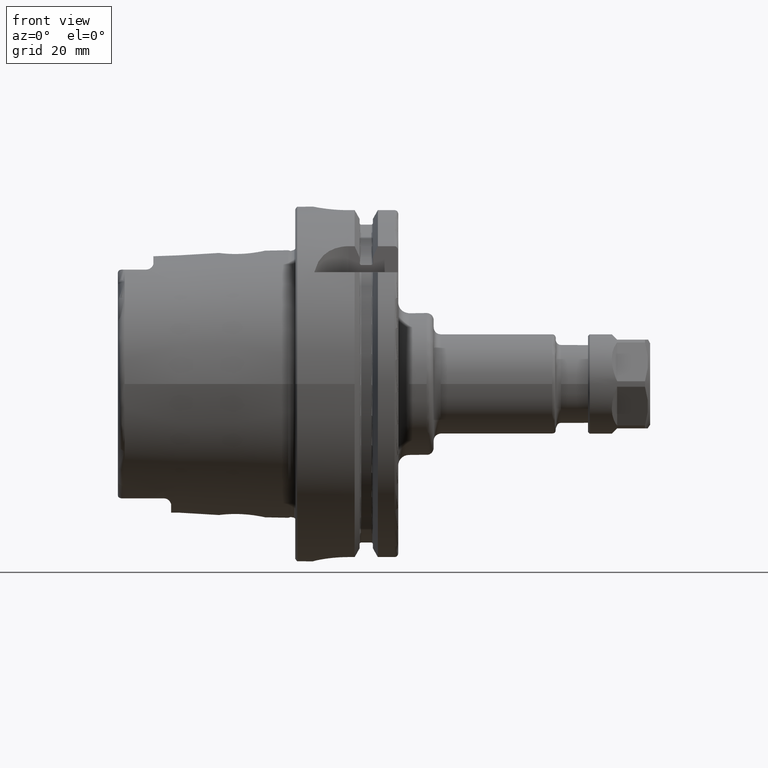
[diagram: clean part render]
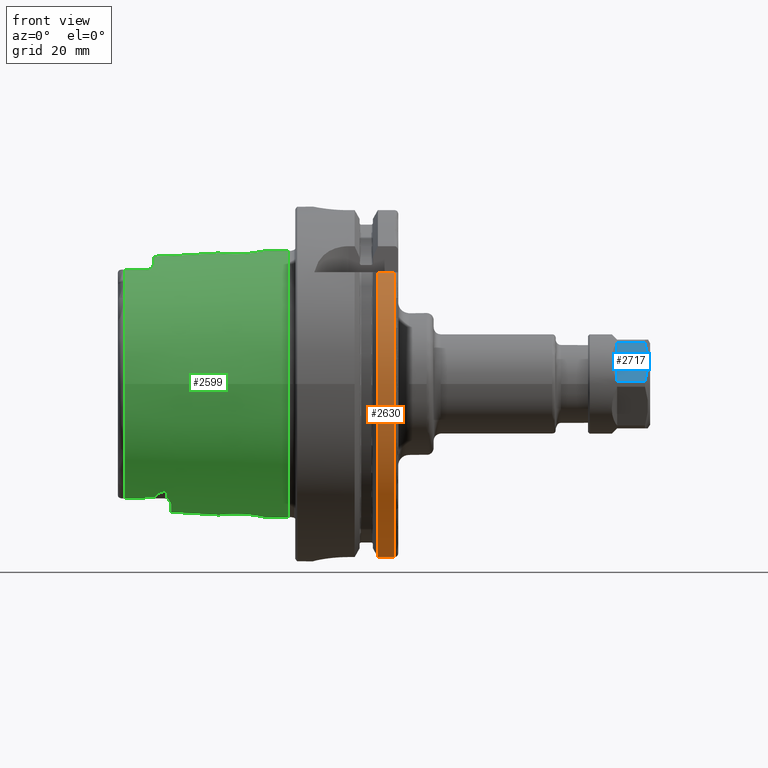
[diagram: same view with three faces highlighted in distinct colors, each labeled with its STEP entity id]
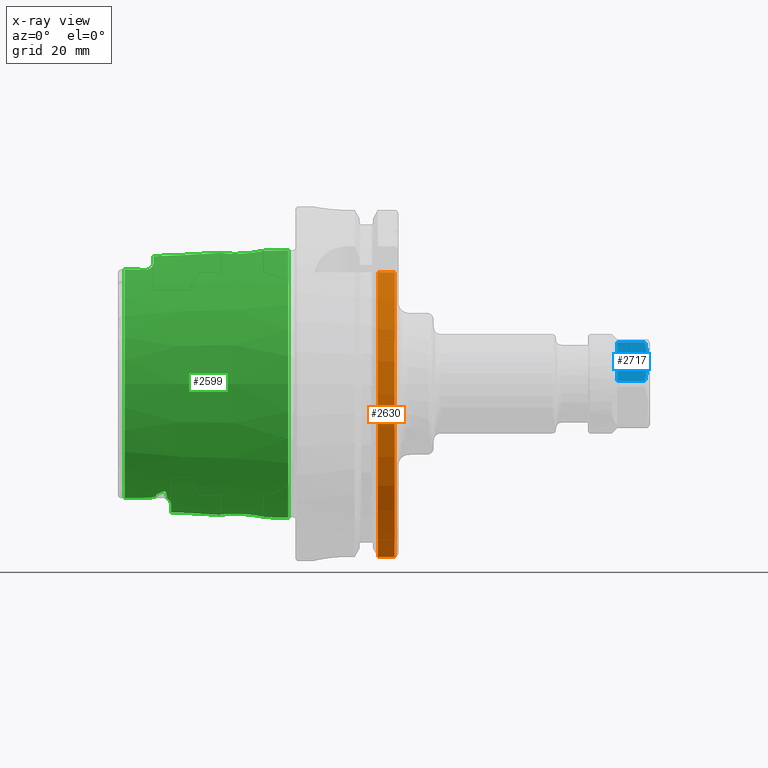
[diagram: x-ray of the same camera — body ghosted, the three highlighted faces saturated]
A machine part, front view with three faces highlighted in distinct colors.
The next image is the same camera in x-ray (body ghosted, the three faces saturated) — at least one of them is partly hidden behind the body in this view.
Their STEP definitions:

[orange] entity #2630 — the highlighted cylindrical surface (partial cylindrical patch) has radius 50 mm, axis along (1, 0, 0).
#345=FACE_OUTER_BOUND('',#507,.T.);
#507=EDGE_LOOP('',(#2087,#2088,#2089,#2090));
#665=LINE('',#4972,#807);
#681=LINE('',#5175,#823);
#807=VECTOR('',#3416,10.);
#823=VECTOR('',#3484,10.);
#971=CIRCLE('',#2942,50.);
#973=CIRCLE('',#2946,50.);
#1188=VERTEX_POINT('',#4967);
#1189=VERTEX_POINT('',#4971);
#1219=VERTEX_POINT('',#5163);
#1220=VERTEX_POINT('',#5174);
#1488=EDGE_CURVE('',#1189,#1188,#665,.T.);
#1533=EDGE_CURVE('',#1220,#1219,#681,.T.);
#1550=EDGE_CURVE('',#1189,#1219,#971,.T.);
#1553=EDGE_CURVE('',#1188,#1220,#973,.T.);
#2087=ORIENTED_EDGE('',*,*,#1488,.T.);
#2088=ORIENTED_EDGE('',*,*,#1553,.T.);
#2089=ORIENTED_EDGE('',*,*,#1533,.T.);
#2090=ORIENTED_EDGE('',*,*,#1550,.F.);
#2544=CYLINDRICAL_SURFACE('',#2945,50.);
#2630=ADVANCED_FACE('',(#345),#2544,.T.);
#2942=AXIS2_PLACEMENT_3D('',#5239,#3511,#3512);
#2945=AXIS2_PLACEMENT_3D('',#5244,#3518,#3519);
#2946=AXIS2_PLACEMENT_3D('',#5245,#3520,#3521);
#3416=DIRECTION('',(-1.,0.,0.));
#3484=DIRECTION('',(1.,0.,0.));
#3511=DIRECTION('center_axis',(1.,0.,0.));
#3512=DIRECTION('ref_axis',(0.,0.,-1.));
#3518=DIRECTION('center_axis',(1.,0.,0.));
#3519=DIRECTION('ref_axis',(0.,-0.94483222014474,-0.327554691275153));
#3520=DIRECTION('center_axis',(1.,0.,0.));
#3521=DIRECTION('ref_axis',(0.,0.,-1.));
#4967=CARTESIAN_POINT('',(23.2620290209214,-38.8297566307078,31.5));
#4971=CARTESIAN_POINT('',(28.,-38.8297566307078,31.5));
#4972=CARTESIAN_POINT('',(25.6310145104607,-38.8297566307078,31.5));
#5163=CARTESIAN_POINT('',(28.,-11.,-48.7749935930288));
#5174=CARTESIAN_POINT('',(23.2620290209214,-11.,-48.7749935930288));
#5175=CARTESIAN_POINT('',(25.6310145104607,-11.,-48.7749935930288));
#5239=CARTESIAN_POINT('Origin',(28.,0.,0.));
#5244=CARTESIAN_POINT('Origin',(25.6310145104607,0.,0.));
#5245=CARTESIAN_POINT('Origin',(23.2620290209214,0.,0.));

[blue] entity #2717 — the highlighted planar face has unit normal (0, 0.866, -0.5).
#80=(
BOUNDED_CURVE()
B_SPLINE_CURVE(2,(#5576,#5577,#5578),.UNSPECIFIED.,.F.,.F.)
B_SPLINE_CURVE_WITH_KNOTS((3,3),(1.76676018698417,3.88699167916846),
 .UNSPECIFIED.)
CURVE()
GEOMETRIC_REPRESENTATION_ITEM()
RATIONAL_B_SPLINE_CURVE((1.57887257803575,1.76833728739999,1.57887257803583))
REPRESENTATION_ITEM('')
);
#250=PLANE('',#3127);
#432=FACE_OUTER_BOUND('',#604,.T.);
#604=EDGE_LOOP('',(#2508,#2509,#2510,#2511));
#735=LINE('',#5624,#877);
#736=LINE('',#5627,#878);
#748=LINE('',#5660,#890);
#877=VECTOR('',#3900,7.856624327026);
#878=VECTOR('',#3903,7.856624327026);
#890=VECTOR('',#3941,12.6095202129196);
#1296=VERTEX_POINT('',#5573);
#1297=VERTEX_POINT('',#5575);
#1311=VERTEX_POINT('',#5623);
#1312=VERTEX_POINT('',#5625);
#1681=EDGE_CURVE('',#1297,#1296,#80,.T.);
#1700=EDGE_CURVE('',#1311,#1297,#735,.T.);
#1702=EDGE_CURVE('',#1312,#1296,#736,.T.);
#1719=EDGE_CURVE('',#1311,#1312,#748,.T.);
#2508=ORIENTED_EDGE('',*,*,#1719,.F.);
#2509=ORIENTED_EDGE('',*,*,#1700,.T.);
#2510=ORIENTED_EDGE('',*,*,#1681,.T.);
#2511=ORIENTED_EDGE('',*,*,#1702,.F.);
#2717=ADVANCED_FACE('',(#432),#250,.F.);
#3127=AXIS2_PLACEMENT_3D('',#5659,#3939,#3940);
#3900=DIRECTION('',(1.,0.,0.));
#3903=DIRECTION('',(1.,0.,0.));
#3939=DIRECTION('center_axis',(0.,0.866025403784429,-0.500000000000017));
#3940=DIRECTION('ref_axis',(0.,0.500000000000017,0.866025403784429));
#3941=DIRECTION('',(0.,0.500000000000017,0.866025403784429));
#5573=CARTESIAN_POINT('',(7.306624327026,-7.672937494076,11.71008241696));
#5575=CARTESIAN_POINT('',(7.306624327026,-13.97769760054,0.7899175830396));
#5576=CARTESIAN_POINT('Ctrl Pts',(7.30662432702171,-13.9776976005394,0.789917583040281));
#5577=CARTESIAN_POINT('Ctrl Pts',(8.94588669847094,-10.8253175473094,6.25000000000109));
#5578=CARTESIAN_POINT('Ctrl Pts',(7.30662432702252,-7.67293749407968,11.7100824169614));
#5623=CARTESIAN_POINT('',(-0.55,-13.97769760054,0.7899175830396));
#5624=CARTESIAN_POINT('',(-0.55,-13.97769760054,0.7899175830396));
#5625=CARTESIAN_POINT('',(-0.55,-7.672937494076,11.71008241696));
#5627=CARTESIAN_POINT('',(-0.55,-7.672937494076,11.71008241696));
#5659=CARTESIAN_POINT('Origin',(8.75,-15.82531754731,-2.410254037844));
#5660=CARTESIAN_POINT('',(-0.55,-13.97769760054,0.7899175830396));

[green] entity #2599 — the highlighted conical surface has half-angle 2.868 deg.
#65=(
BOUNDED_CURVE()
B_SPLINE_CURVE(2,(#4414,#4415,#4416),.UNSPECIFIED.,.F.,.F.)
B_SPLINE_CURVE_WITH_KNOTS((3,3),(0.584552731684763,1.01274112792473),
 .UNSPECIFIED.)
CURVE()
GEOMETRIC_REPRESENTATION_ITEM()
RATIONAL_B_SPLINE_CURVE((1.00299496728687,1.00299496728687,1.00138797244737))
REPRESENTATION_ITEM('')
);
#66=(
BOUNDED_CURVE()
B_SPLINE_CURVE(2,(#4483,#4484,#4485),.UNSPECIFIED.,.F.,.F.)
B_SPLINE_CURVE_WITH_KNOTS((3,3),(0.156364335444822,0.584552731684782),
 .UNSPECIFIED.)
CURVE()
GEOMETRIC_REPRESENTATION_ITEM()
RATIONAL_B_SPLINE_CURVE((1.00138797244738,1.00299496728688,1.00299496728688))
REPRESENTATION_ITEM('')
);
#89=B_SPLINE_CURVE_WITH_KNOTS('',3,(#4095,#4096,#4097,#4098,#4099,#4100,
#4101,#4102,#4103,#4104,#4105,#4106,#4107,#4108,#4109,#4110,#4111,#4112),
 .UNSPECIFIED.,.F.,.F.,(4,2,2,2,2,2,2,2,4),(1.82139636410114,1.83165892733975,
1.84192149057836,1.86244661705558,1.93660019990987,2.01075378276416,2.21475865094393,
2.41876351912369,2.7012608097453),.UNSPECIFIED.);
#90=B_SPLINE_CURVE_WITH_KNOTS('',3,(#4137,#4138,#4139,#4140,#4141,#4142,
#4143,#4144,#4145,#4146,#4147,#4148,#4149,#4150,#4151,#4152,#4153,#4154),
 .UNSPECIFIED.,.F.,.F.,(4,2,2,2,2,2,2,2,4),(0.941531918456969,1.22402920907858,
1.42803407725834,1.6320389454381,1.70619252829239,1.78034611114668,1.80087123762391,
1.81113380086252,1.82139636410113),.UNSPECIFIED.);
#93=B_SPLINE_CURVE_WITH_KNOTS('',3,(#4205,#4206,#4207,#4208,#4209,#4210,
#4211,#4212),.UNSPECIFIED.,.F.,.F.,(4,2,2,4),(2.11861414458057,2.2150675983984,
2.41910198133518,2.70152248778045),.UNSPECIFIED.);
#94=B_SPLINE_CURVE_WITH_KNOTS('',3,(#4229,#4230,#4231,#4232,#4233,#4234,
#4235,#4236),.UNSPECIFIED.,.F.,.F.,(4,2,2,4),(0.941785791175404,1.22420629762067,
1.42824068055745,1.52469413437528),.UNSPECIFIED.);
#98=B_SPLINE_CURVE_WITH_KNOTS('',3,(#4383,#4384,#4385,#4386,#4387,#4388,
#4389,#4390,#4391,#4392,#4393,#4394,#4395,#4396,#4397,#4398,#4399,#4400,
#4401,#4402,#4403,#4404,#4405,#4406),.UNSPECIFIED.,.T.,.F.,(4,1,1,1,1,1,
1,1,1,1,1,1,1,1,1,1,1,1,1,1,1,4),(-3.62526060553391,-3.36631341942435,-3.23683982636957,
-3.10736623331478,-2.91315584373261,-2.84841904720522,-2.58947186109565,
-2.41684040368928,-2.2442089462829,-2.07157748887652,-1.89894603147015,
-1.72631457406377,-1.55368311665739,-1.42420952360261,-1.29473593054783,
-1.16526233749304,-1.03578874443826,-0.776841558328696,-0.517894372219131,
-0.388420779164348,-0.258947186109565,0.),.UNSPECIFIED.);
#99=B_SPLINE_CURVE_WITH_KNOTS('',3,(#4418,#4419,#4420,#4421,#4422,#4423,
#4424,#4425,#4426,#4427,#4428,#4429,#4430,#4431,#4432,#4433,#4434,#4435),
 .UNSPECIFIED.,.F.,.F.,(4,2,2,2,2,2,2,2,4),(0.,0.135304265390776,0.202956398086165,
0.270608530781553,0.285985760505599,0.293674375367623,0.301362990229646,
0.309065814809453,0.312240543595572),.UNSPECIFIED.);
#100=B_SPLINE_CURVE_WITH_KNOTS('',3,(#4437,#4438,#4439,#4440,#4441,#4442,
#4443,#4444,#4445,#4446),.UNSPECIFIED.,.F.,.F.,(4,2,2,2,4),(0.355882377061024,
0.475337474766741,0.814409309765131,0.916871755852837,0.96838361555764),
 .UNSPECIFIED.);
#101=B_SPLINE_CURVE_WITH_KNOTS('',3,(#4450,#4451,#4452,#4453,#4454,#4455,
#4456,#4457,#4458,#4459,#4460,#4461,#4462,#4463),.UNSPECIFIED.,.F.,.F.,
(4,2,2,2,2,2,4),(0.968383615555967,0.974150710871355,1.03435732628962,1.16414359525928,
1.35274565404034,1.53834753535542,1.54014497255958),.UNSPECIFIED.);
#102=B_SPLINE_CURVE_WITH_KNOTS('',3,(#4465,#4466,#4467,#4468,#4469,#4470,
#4471,#4472,#4473,#4474,#4475,#4476,#4477,#4478,#4479,#4480,#4481,#4482),
 .UNSPECIFIED.,.F.,.F.,(4,2,2,2,2,2,2,2,4),(0.892798921569994,0.895973650356143,
0.90367647493595,0.911365089797973,0.919053704659997,0.934430934384044,
1.00208306707943,1.06973519977482,1.2050394651656),.UNSPECIFIED.);
#103=B_SPLINE_CURVE_WITH_KNOTS('',3,(#4488,#4489,#4490,#4491,#4492,#4493,
#4494,#4495,#4496,#4497,#4498,#4499,#4500,#4501,#4502,#4503),
 .UNSPECIFIED.,.F.,.F.,(4,2,2,2,2,2,2,4),(0.951925610593878,1.05814966490865,
1.29620724180457,1.38654842311884,1.45440735886397,1.51777192589664,1.5739379106757,
1.5771381713645),.UNSPECIFIED.);
#104=B_SPLINE_CURVE_WITH_KNOTS('',3,(#4506,#4507,#4508,#4509,#4510,#4511,
#4512,#4513,#4514,#4515,#4516,#4517,#4518,#4519),.UNSPECIFIED.,.F.,.F.,
(4,2,2,2,2,2,4),(0.58599893881899,0.631178615969429,0.682399631951053,0.741327952008913,
0.839467365471938,1.06407790070645,1.25314135766173),.UNSPECIFIED.);
#105=B_SPLINE_CURVE_WITH_KNOTS('',3,(#4522,#4523,#4524,#4525,#4526,#4527,
#4528,#4529,#4530,#4531,#4532,#4533,#4534,#4535,#4536,#4537,#4538,#4539,
#4540,#4541,#4542,#4543,#4544,#4545,#4546,#4547),.UNSPECIFIED.,.T.,.F.,
(4,1,1,1,1,1,1,1,1,1,1,1,1,1,1,1,1,1,1,1,1,1,1,4),(-3.62526060553391,-3.36631341942435,
-3.23683982636957,-3.13973463157848,-3.10736623331478,-2.84841904720522,
-2.58947186109565,-2.41684040368928,-2.2442089462829,-2.2010510819313,-2.07157748887652,
-1.89894603147015,-1.72631457406377,-1.55368311665739,-1.42420952360261,
-1.29473593054783,-1.16526233749304,-1.03578874443826,-0.776841558328696,
-0.712104761801304,-0.51789437221913,-0.388420779164348,-0.258947186109565,
0.),.UNSPECIFIED.);
#160=CONICAL_SURFACE('',#2877,36.7524901081155,0.0500583457465976);
#183=FACE_BOUND('',#474,.T.);
#184=FACE_BOUND('',#475,.T.);
#314=FACE_OUTER_BOUND('',#473,.T.);
#473=EDGE_LOOP('',(#1873,#1874,#1875,#1876,#1877,#1878,#1879,#1880,#1881,
#1882,#1883,#1884,#1885,#1886,#1887,#1888,#1889,#1890,#1891,#1892));
#474=EDGE_LOOP('',(#1893));
#475=EDGE_LOOP('',(#1894));
#648=LINE('',#4411,#790);
#790=VECTOR('',#3343,36.7524901081155);
#935=CIRCLE('',#2878,37.9073016032064);
#936=CIRCLE('',#2879,35.5976786130245);
#937=CIRCLE('',#2880,36.25399498998);
#938=CIRCLE('',#2881,35.5976786130245);
#939=CIRCLE('',#2882,36.003493987976);
#940=CIRCLE('',#2883,35.5976786130245);
#1104=VERTEX_POINT('',#4081);
#1105=VERTEX_POINT('',#4094);
#1115=VERTEX_POINT('',#4134);
#1116=VERTEX_POINT('',#4136);
#1126=VERTEX_POINT('',#4191);
#1127=VERTEX_POINT('',#4204);
#1133=VERTEX_POINT('',#4226);
#1134=VERTEX_POINT('',#4228);
#1137=VERTEX_POINT('',#4351);
#1140=VERTEX_POINT('',#4408);
#1141=VERTEX_POINT('',#4410);
#1142=VERTEX_POINT('',#4413);
#1143=VERTEX_POINT('',#4417);
#1144=VERTEX_POINT('',#4436);
#1145=VERTEX_POINT('',#4447);
#1146=VERTEX_POINT('',#4449);
#1147=VERTEX_POINT('',#4464);
#1148=VERTEX_POINT('',#4487);
#1149=VERTEX_POINT('',#4504);
#1150=VERTEX_POINT('',#4521);
#1380=EDGE_CURVE('',#1105,#1104,#89,.T.);
#1392=EDGE_CURVE('',#1116,#1115,#90,.T.);
#1406=EDGE_CURVE('',#1127,#1126,#93,.T.);
#1414=EDGE_CURVE('',#1134,#1133,#94,.T.);
#1422=EDGE_CURVE('',#1137,#1137,#98,.T.);
#1423=EDGE_CURVE('',#1140,#1140,#935,.T.);
#1424=EDGE_CURVE('',#1140,#1141,#648,.T.);
#1425=EDGE_CURVE('',#1141,#1116,#936,.T.);
#1426=EDGE_CURVE('',#1115,#1142,#65,.T.);
#1427=EDGE_CURVE('',#1143,#1142,#99,.T.);
#1428=EDGE_CURVE('',#1144,#1143,#100,.T.);
#1429=EDGE_CURVE('',#1144,#1145,#937,.T.);
#1430=EDGE_CURVE('',#1146,#1145,#101,.T.);
#1431=EDGE_CURVE('',#1147,#1146,#102,.T.);
#1432=EDGE_CURVE('',#1147,#1105,#66,.T.);
#1433=EDGE_CURVE('',#1104,#1134,#938,.T.);
#1434=EDGE_CURVE('',#1148,#1133,#103,.T.);
#1435=EDGE_CURVE('',#1148,#1149,#939,.T.);
#1436=EDGE_CURVE('',#1127,#1149,#104,.T.);
#1437=EDGE_CURVE('',#1126,#1141,#940,.T.);
#1438=EDGE_CURVE('',#1150,#1150,#105,.T.);
#1873=ORIENTED_EDGE('',*,*,#1423,.F.);
#1874=ORIENTED_EDGE('',*,*,#1424,.T.);
#1875=ORIENTED_EDGE('',*,*,#1425,.T.);
#1876=ORIENTED_EDGE('',*,*,#1392,.T.);
#1877=ORIENTED_EDGE('',*,*,#1426,.T.);
#1878=ORIENTED_EDGE('',*,*,#1427,.F.);
#1879=ORIENTED_EDGE('',*,*,#1428,.F.);
#1880=ORIENTED_EDGE('',*,*,#1429,.T.);
#1881=ORIENTED_EDGE('',*,*,#1430,.F.);
#1882=ORIENTED_EDGE('',*,*,#1431,.F.);
#1883=ORIENTED_EDGE('',*,*,#1432,.T.);
#1884=ORIENTED_EDGE('',*,*,#1380,.T.);
#1885=ORIENTED_EDGE('',*,*,#1433,.T.);
#1886=ORIENTED_EDGE('',*,*,#1414,.T.);
#1887=ORIENTED_EDGE('',*,*,#1434,.F.);
#1888=ORIENTED_EDGE('',*,*,#1435,.T.);
#1889=ORIENTED_EDGE('',*,*,#1436,.F.);
#1890=ORIENTED_EDGE('',*,*,#1406,.T.);
#1891=ORIENTED_EDGE('',*,*,#1437,.T.);
#1892=ORIENTED_EDGE('',*,*,#1424,.F.);
#1893=ORIENTED_EDGE('',*,*,#1438,.F.);
#1894=ORIENTED_EDGE('',*,*,#1422,.F.);
#2599=ADVANCED_FACE('',(#314,#183,#184),#160,.T.);
#2877=AXIS2_PLACEMENT_3D('',#4407,#3339,#3340);
#2878=AXIS2_PLACEMENT_3D('',#4409,#3341,#3342);
#2879=AXIS2_PLACEMENT_3D('',#4412,#3344,#3345);
#2880=AXIS2_PLACEMENT_3D('',#4448,#3346,#3347);
#2881=AXIS2_PLACEMENT_3D('',#4486,#3348,#3349);
#2882=AXIS2_PLACEMENT_3D('',#4505,#3350,#3351);
#2883=AXIS2_PLACEMENT_3D('',#4520,#3352,#3353);
#3339=DIRECTION('center_axis',(1.,0.,0.));
#3340=DIRECTION('ref_axis',(0.,1.,0.));
#3341=DIRECTION('center_axis',(1.,0.,0.));
#3342=DIRECTION('ref_axis',(0.,0.,-1.));
#3343=DIRECTION('',(-0.998747342623037,0.0500374420151823,6.12781932014143E-18));
#3344=DIRECTION('center_axis',(1.,0.,0.));
#3345=DIRECTION('ref_axis',(0.,0.,-1.));
#3346=DIRECTION('center_axis',(1.,0.,0.));
#3347=DIRECTION('ref_axis',(0.,1.,0.));
#3348=DIRECTION('center_axis',(1.,0.,0.));
#3349=DIRECTION('ref_axis',(0.,0.,-1.));
#3350=DIRECTION('center_axis',(1.,0.,0.));
#3351=DIRECTION('ref_axis',(0.,1.,0.));
#3352=DIRECTION('center_axis',(1.,0.,0.));
#3353=DIRECTION('ref_axis',(0.,0.,-1.));
#4081=CARTESIAN_POINT('',(-48.1000748840304,15.0787152148571,-32.2463497175327));
#4094=CARTESIAN_POINT('',(-39.3086860506441,17.2220784153651,-31.6567015600095));
#4095=CARTESIAN_POINT('Ctrl Pts',(-39.3086860506439,17.2220784153651,-31.6567015600096));
#4096=CARTESIAN_POINT('Ctrl Pts',(-39.3086860506439,17.1920288621925,-31.6730493074242));
#4097=CARTESIAN_POINT('Ctrl Pts',(-39.3149778656361,17.1622985367362,-31.6888083298259));
#4098=CARTESIAN_POINT('Ctrl Pts',(-39.3379356243704,17.1047575471073,-31.7185977246152));
#4099=CARTESIAN_POINT('Ctrl Pts',(-39.3545931085757,17.0769444761517,-31.7326299669));
#4100=CARTESIAN_POINT('Ctrl Pts',(-39.41492287308,16.9977687004959,-31.7717242618145));
#4101=CARTESIAN_POINT('Ctrl Pts',(-39.4690330405114,16.9505386197656,-31.7938497879436));
#4102=CARTESIAN_POINT('Ctrl Pts',(-39.7137538085318,16.7691556019457,-31.8763882092881));
#4103=CARTESIAN_POINT('Ctrl Pts',(-39.9557031082111,16.6668123685081,-31.9161154581445));
#4104=CARTESIAN_POINT('Ctrl Pts',(-40.4538120390228,16.4807891402054,-31.9844991546727));
#4105=CARTESIAN_POINT('Ctrl Pts',(-40.7121103138056,16.4018770942044,-32.0104206666339));
#4106=CARTESIAN_POINT('Ctrl Pts',(-41.6015350915672,16.1516844838416,-32.0879931345296));
#4107=CARTESIAN_POINT('Ctrl Pts',(-42.2774968259687,16.0065639510366,-32.1225120780024));
#4108=CARTESIAN_POINT('Ctrl Pts',(-43.6583569770469,15.7387900082285,-32.1775602969968));
#4109=CARTESIAN_POINT('Ctrl Pts',(-44.3638273319757,15.6187903492069,-32.19660809961));
#4110=CARTESIAN_POINT('Ctrl Pts',(-46.0708874643597,15.3507400024476,-32.2307282620297));
#4111=CARTESIAN_POINT('Ctrl Pts',(-47.0815953489825,15.2100460868363,-32.2412671998384));
#4112=CARTESIAN_POINT('Ctrl Pts',(-48.1000748840303,15.0787152148571,-32.2463497175327));
#4134=CARTESIAN_POINT('',(-39.3086860506441,-17.2220784153651,-31.6567015600095));
#4136=CARTESIAN_POINT('',(-48.1000748840304,-15.0787152148571,-32.2463497175327));
#4137=CARTESIAN_POINT('Ctrl Pts',(-48.1000748840304,-15.0787152148571,-32.2463497175327));
#4138=CARTESIAN_POINT('Ctrl Pts',(-47.0815953489825,-15.2100460868363,-32.2412671998384));
#4139=CARTESIAN_POINT('Ctrl Pts',(-46.0708874643597,-15.3507400024476,-32.2307282620297));
#4140=CARTESIAN_POINT('Ctrl Pts',(-44.3638273319757,-15.6187903492069,-32.19660809961));
#4141=CARTESIAN_POINT('Ctrl Pts',(-43.6583569770469,-15.7387900082285,-32.1775602969968));
#4142=CARTESIAN_POINT('Ctrl Pts',(-42.2774968259687,-16.0065639510366,-32.1225120780024));
#4143=CARTESIAN_POINT('Ctrl Pts',(-41.6015350915672,-16.1516844838416,-32.0879931345296));
#4144=CARTESIAN_POINT('Ctrl Pts',(-40.7121103138057,-16.4018770942044,-32.0104206666339));
#4145=CARTESIAN_POINT('Ctrl Pts',(-40.4538120390228,-16.4807891402054,-31.9844991546726));
#4146=CARTESIAN_POINT('Ctrl Pts',(-39.9557031082111,-16.6668123685081,-31.9161154581445));
#4147=CARTESIAN_POINT('Ctrl Pts',(-39.7137538085319,-16.7691556019457,-31.8763882092881));
#4148=CARTESIAN_POINT('Ctrl Pts',(-39.4690330405114,-16.9505386197656,-31.7938497879436));
#4149=CARTESIAN_POINT('Ctrl Pts',(-39.41492287308,-16.9977687004959,-31.7717242618145));
#4150=CARTESIAN_POINT('Ctrl Pts',(-39.3545931085758,-17.0769444761517,-31.7326299669));
#4151=CARTESIAN_POINT('Ctrl Pts',(-39.3379356243703,-17.1047575471073,-31.7185977246152));
#4152=CARTESIAN_POINT('Ctrl Pts',(-39.314977865636,-17.1622985367361,-31.688808329826));
#4153=CARTESIAN_POINT('Ctrl Pts',(-39.3086860506439,-17.1920288621925,-31.6730493074242));
#4154=CARTESIAN_POINT('Ctrl Pts',(-39.3086860506439,-17.2220784153651,-31.6567015600096));
#4191=CARTESIAN_POINT('',(-48.1000748840304,-15.0787152148571,32.2463497175327));
#4204=CARTESIAN_POINT('',(-42.0000000002536,-16.0736316900317,32.1042809403702));
#4205=CARTESIAN_POINT('Ctrl Pts',(-42.0000000002663,-16.0736316900856,32.1042809403568));
#4206=CARTESIAN_POINT('Ctrl Pts',(-42.3189705746531,-16.0023328339441,32.122106579912));
#4207=CARTESIAN_POINT('Ctrl Pts',(-42.6420078541405,-15.9358744877955,32.1370456038288));
#4208=CARTESIAN_POINT('Ctrl Pts',(-43.6589764923173,-15.7386786248219,32.177580265585));
#4209=CARTESIAN_POINT('Ctrl Pts',(-44.364550975751,-15.6186692080222,32.1966265955614));
#4210=CARTESIAN_POINT('Ctrl Pts',(-46.0714496280263,-15.3506621075505,32.2307339275334));
#4211=CARTESIAN_POINT('Ctrl Pts',(-47.0818768820559,-15.210009783717,32.2412686047727));
#4212=CARTESIAN_POINT('Ctrl Pts',(-48.1000748840304,-15.0787152148571,32.2463497175327));
#4226=CARTESIAN_POINT('',(-42.0000000002536,16.0736316900317,32.1042809403702));
#4228=CARTESIAN_POINT('',(-48.1000748840304,15.0787152148571,32.2463497175327));
#4229=CARTESIAN_POINT('Ctrl Pts',(-48.1000748840304,15.0787152148571,32.2463497175327));
#4230=CARTESIAN_POINT('Ctrl Pts',(-47.0818768820559,15.210009783717,32.2412686047727));
#4231=CARTESIAN_POINT('Ctrl Pts',(-46.0714496280263,15.3506621075505,32.2307339275334));
#4232=CARTESIAN_POINT('Ctrl Pts',(-44.364550975751,15.6186692080222,32.1966265955614));
#4233=CARTESIAN_POINT('Ctrl Pts',(-43.6589764923172,15.7386786248219,32.177580265585));
#4234=CARTESIAN_POINT('Ctrl Pts',(-42.6420078541405,15.9358744877955,32.1370456038288));
#4235=CARTESIAN_POINT('Ctrl Pts',(-42.3189705746531,16.0023328339441,32.122106579912));
#4236=CARTESIAN_POINT('Ctrl Pts',(-42.0000000002663,16.0736316900856,32.1042809403568));
#4351=CARTESIAN_POINT('',(-15.0482435047104,6.49272743621066,-36.6834276129017));
#4383=CARTESIAN_POINT('Ctrl Pts',(-15.0482435047104,6.49272743621066,-36.6834276129017));
#4384=CARTESIAN_POINT('Ctrl Pts',(-14.1135545674523,6.50026995600844,-36.7296485677624));
#4385=CARTESIAN_POINT('Ctrl Pts',(-12.6125862949105,6.18830817118321,-36.8646717861154));
#4386=CARTESIAN_POINT('Ctrl Pts',(-10.9355263213122,5.13385394303874,-37.1097128714846));
#4387=CARTESIAN_POINT('Ctrl Pts',(-9.77420691042437,3.99872482551772,-37.3124990416381));
#4388=CARTESIAN_POINT('Ctrl Pts',(-9.01389114298067,2.6908920183028,-37.4692616165149));
#4389=CARTESIAN_POINT('Ctrl Pts',(-8.45620136187699,0.783918842134784,-37.5909415665212));
#4390=CARTESIAN_POINT('Ctrl Pts',(-8.42050281053454,-1.03174264349175,-37.5987683444945));
#4391=CARTESIAN_POINT('Ctrl Pts',(-9.26297266549275,-3.26583075674904,-37.4147206754643));
#4392=CARTESIAN_POINT('Ctrl Pts',(-10.458492519938,-4.76885929810559,-37.1861403632723));
#4393=CARTESIAN_POINT('Ctrl Pts',(-12.0228887870965,-5.89032438834427,-36.9420532655873));
#4394=CARTESIAN_POINT('Ctrl Pts',(-13.9680532212746,-6.50710199210242,-36.7359370633354));
#4395=CARTESIAN_POINT('Ctrl Pts',(-15.8440764393336,-6.52958618717481,-36.6362816769022));
#4396=CARTESIAN_POINT('Ctrl Pts',(-17.6300730630046,-6.03011079587191,-36.6335589552162));
#4397=CARTESIAN_POINT('Ctrl Pts',(-19.0454046322519,-5.14759442471502,-36.6975665887127));
#4398=CARTESIAN_POINT('Ctrl Pts',(-20.0509032742539,-4.16499804110167,-36.7727593560743));
#4399=CARTESIAN_POINT('Ctrl Pts',(-20.8701749498926,-2.92631384107143,-36.8543936474532));
#4400=CARTESIAN_POINT('Ctrl Pts',(-21.5409373453018,-1.02232892624704,-36.9349482957206));
#4401=CARTESIAN_POINT('Ctrl Pts',(-21.5837880668158,1.35571299008144,-36.9401169281877));
#4402=CARTESIAN_POINT('Ctrl Pts',(-20.4818838939864,3.73437449889082,-36.8075944881395));
#4403=CARTESIAN_POINT('Ctrl Pts',(-19.1568247034836,5.05418616406115,-36.7047525113947));
#4404=CARTESIAN_POINT('Ctrl Pts',(-17.4931824437517,6.14967739850973,-36.6242770442053));
#4405=CARTESIAN_POINT('Ctrl Pts',(-15.9829324419684,6.48518491641288,-36.637206658041));
#4406=CARTESIAN_POINT('Ctrl Pts',(-15.0482435047104,6.49272743621066,-36.6834276129017));
#4407=CARTESIAN_POINT('Origin',(-25.0500374420152,0.,0.));
#4408=CARTESIAN_POINT('',(-2.,-37.9073016032064,-4.64230555726801E-15));
#4409=CARTESIAN_POINT('Origin',(-2.,0.,0.));
#4410=CARTESIAN_POINT('',(-48.1000748840304,-35.5976786130245,-4.35945831705167E-15));
#4411=CARTESIAN_POINT('',(-25.0500374420152,-36.7524901081155,-4.50088193715984E-15));
#4412=CARTESIAN_POINT('Origin',(-48.1000748840304,0.,0.));
#4413=CARTESIAN_POINT('',(-36.9999999999998,-19.7604190654811,-30.275777472314));
#4414=CARTESIAN_POINT('Ctrl Pts',(-39.3086860506441,-17.2220784153651,-31.6567015600095));
#4415=CARTESIAN_POINT('Ctrl Pts',(-39.3086860506441,-18.4892152804039,-30.9673457719047));
#4416=CARTESIAN_POINT('Ctrl Pts',(-37.0000000000089,-19.760419065476,-30.2757774723168));
#4417=CARTESIAN_POINT('',(-36.2297931655992,-17.2957936700592,-31.7922009905656));
#4418=CARTESIAN_POINT('Ctrl Pts',(-36.2297931655991,-17.2957936700592,-31.7922009905656));
#4419=CARTESIAN_POINT('Ctrl Pts',(-36.2297931655991,-17.6919746847632,-31.5766680965597));
#4420=CARTESIAN_POINT('Ctrl Pts',(-36.2521990165892,-18.1190045646745,-31.3326752508756));
#4421=CARTESIAN_POINT('Ctrl Pts',(-36.3408092415002,-18.7314387685111,-30.9624943289716));
#4422=CARTESIAN_POINT('Ctrl Pts',(-36.3790895444364,-18.9299841471613,-30.8391450528654));
#4423=CARTESIAN_POINT('Ctrl Pts',(-36.4852329136377,-19.306843178886,-30.5983353090591));
#4424=CARTESIAN_POINT('Ctrl Pts',(-36.5439103950281,-19.4871821233798,-30.4800880558704));
#4425=CARTESIAN_POINT('Ctrl Pts',(-36.6912326687357,-19.6798076445983,-30.3467082687203));
#4426=CARTESIAN_POINT('Ctrl Pts',(-36.7249701183787,-19.7165113518141,-30.3208469816645));
#4427=CARTESIAN_POINT('Ctrl Pts',(-36.7841864173308,-19.7579943063986,-30.290274608581));
#4428=CARTESIAN_POINT('Ctrl Pts',(-36.8053838947294,-19.7694984454156,-30.2814962901986));
#4429=CARTESIAN_POINT('Ctrl Pts',(-36.8506143317697,-19.7854180725537,-30.2683898183443));
#4430=CARTESIAN_POINT('Ctrl Pts',(-36.8746547533364,-19.7898201350064,-30.264071114845));
#4431=CARTESIAN_POINT('Ctrl Pts',(-36.925895284142,-19.7884151696532,-30.2619225368856));
#4432=CARTESIAN_POINT('Ctrl Pts',(-36.9499861453108,-19.7826799175172,-30.2642318432453));
#4433=CARTESIAN_POINT('Ctrl Pts',(-36.9820207117301,-19.7696848900689,-30.2708039920388));
#4434=CARTESIAN_POINT('Ctrl Pts',(-36.9911306097576,-19.7653027102035,-30.273120641115));
#4435=CARTESIAN_POINT('Ctrl Pts',(-36.9999999999997,-19.760419065481,-30.275777472314));
#4436=CARTESIAN_POINT('',(-35.,-12.7918651267415,-33.9222690767105));
#4437=CARTESIAN_POINT('Ctrl Pts',(-35.,-12.7918651267426,-33.9222690767101));
#4438=CARTESIAN_POINT('Ctrl Pts',(-35.0000000000001,-13.2716695445343,-33.7413379784475));
#4439=CARTESIAN_POINT('Ctrl Pts',(-35.0765460606978,-13.7105867284853,-33.5594062083601));
#4440=CARTESIAN_POINT('Ctrl Pts',(-35.3935172162449,-15.0275145848391,-32.9882321567447));
#4441=CARTESIAN_POINT('Ctrl Pts',(-35.8272793338039,-15.8448282797016,-32.5701705725068));
#4442=CARTESIAN_POINT('Ctrl Pts',(-36.1303536788273,-16.6786905371956,-32.126600714556));
#4443=CARTESIAN_POINT('Ctrl Pts',(-36.1820664850684,-16.8557754437463,-32.030984619072));
#4444=CARTESIAN_POINT('Ctrl Pts',(-36.2225122577352,-17.1184652869411,-31.8886039957027));
#4445=CARTESIAN_POINT('Ctrl Pts',(-36.2297931655992,-17.2061020907562,-31.8409955691488));
#4446=CARTESIAN_POINT('Ctrl Pts',(-36.2297931655992,-17.2957936700592,-31.7922009905656));
#4447=CARTESIAN_POINT('',(-35.,12.7918651267415,-33.9222690767105));
#4448=CARTESIAN_POINT('Origin',(-35.,0.,0.));
#4449=CARTESIAN_POINT('',(-36.2297931655992,17.2957936700592,-31.7922009905656));
#4450=CARTESIAN_POINT('Ctrl Pts',(-36.2297931655992,17.2957936700592,-31.7922009905656));
#4451=CARTESIAN_POINT('Ctrl Pts',(-36.2297931655992,17.2857521011896,-31.7976638681859));
#4452=CARTESIAN_POINT('Ctrl Pts',(-36.2297018732724,17.2756840159163,-31.8031402140989));
#4453=CARTESIAN_POINT('Ctrl Pts',(-36.2275970792751,17.1601682556352,-31.8659616470356));
#4454=CARTESIAN_POINT('Ctrl Pts',(-36.2156218316917,17.0562072347613,-31.922407942335));
#4455=CARTESIAN_POINT('Ctrl Pts',(-36.1505093185127,16.7229293390599,-32.1027521967692));
#4456=CARTESIAN_POINT('Ctrl Pts',(-36.065134056668,16.4848506381079,-32.2308215310631));
#4457=CARTESIAN_POINT('Ctrl Pts',(-35.7984585549742,15.8312737268516,-32.5732245714574));
#4458=CARTESIAN_POINT('Ctrl Pts',(-35.5744019673667,15.3507133777923,-32.8174718312589));
#4459=CARTESIAN_POINT('Ctrl Pts',(-35.1938633470317,14.2651773499191,-33.3242510091415));
#4460=CARTESIAN_POINT('Ctrl Pts',(-35.0037140190077,13.5715015976815,-33.6275053772421));
#4461=CARTESIAN_POINT('Ctrl Pts',(-35.0000176891147,12.8065033311274,-33.9167454576574));
#4462=CARTESIAN_POINT('Ctrl Pts',(-35.,12.7991780985434,-33.9195114030197));
#4463=CARTESIAN_POINT('Ctrl Pts',(-35.,12.7918651267414,-33.9222690767105));
#4464=CARTESIAN_POINT('',(-37.,19.7604190654809,-30.2757774723141));
#4465=CARTESIAN_POINT('Ctrl Pts',(-37.,19.760419065481,-30.2757774723141));
#4466=CARTESIAN_POINT('Ctrl Pts',(-36.9911306097578,19.7653027102035,-30.273120641115));
#4467=CARTESIAN_POINT('Ctrl Pts',(-36.9820207117302,19.769684890069,-30.2708039920388));
#4468=CARTESIAN_POINT('Ctrl Pts',(-36.9499861453108,19.7826799175173,-30.2642318432453));
#4469=CARTESIAN_POINT('Ctrl Pts',(-36.925895284142,19.7884151696532,-30.2619225368856));
#4470=CARTESIAN_POINT('Ctrl Pts',(-36.8746547533364,19.7898201350064,-30.264071114845));
#4471=CARTESIAN_POINT('Ctrl Pts',(-36.8506143317697,19.7854180725537,-30.2683898183443));
#4472=CARTESIAN_POINT('Ctrl Pts',(-36.8053838947294,19.7694984454156,-30.2814962901986));
#4473=CARTESIAN_POINT('Ctrl Pts',(-36.7841864173308,19.7579943063986,-30.290274608581));
#4474=CARTESIAN_POINT('Ctrl Pts',(-36.7249701183787,19.7165113518141,-30.3208469816645));
#4475=CARTESIAN_POINT('Ctrl Pts',(-36.6912326687357,19.6798076445984,-30.3467082687203));
#4476=CARTESIAN_POINT('Ctrl Pts',(-36.5439103950281,19.4871821233798,-30.4800880558704));
#4477=CARTESIAN_POINT('Ctrl Pts',(-36.4852329136378,19.306843178886,-30.5983353090591));
#4478=CARTESIAN_POINT('Ctrl Pts',(-36.3790895444365,18.9299841471613,-30.8391450528654));
#4479=CARTESIAN_POINT('Ctrl Pts',(-36.3408092415002,18.7314387685111,-30.9624943289715));
#4480=CARTESIAN_POINT('Ctrl Pts',(-36.2521990165892,18.1190045646745,-31.3326752508756));
#4481=CARTESIAN_POINT('Ctrl Pts',(-36.2297931655991,17.6919746847632,-31.5766680965597));
#4482=CARTESIAN_POINT('Ctrl Pts',(-36.2297931655991,17.2957936700592,-31.7922009905656));
#4483=CARTESIAN_POINT('Ctrl Pts',(-37.0000000000092,19.7604190654759,-30.2757774723168));
#4484=CARTESIAN_POINT('Ctrl Pts',(-39.3086860506441,18.4892152804039,-30.9673457719048));
#4485=CARTESIAN_POINT('Ctrl Pts',(-39.3086860506441,17.2220784153651,-31.6567015600095));
#4486=CARTESIAN_POINT('Origin',(-48.1000748840304,0.,0.));
#4487=CARTESIAN_POINT('',(-40.,12.4227760464511,33.7923987701664));
#4488=CARTESIAN_POINT('Ctrl Pts',(-40.,12.4227760464511,33.7923987701664));
#4489=CARTESIAN_POINT('Ctrl Pts',(-40.,12.7419527823378,33.6750628824087));
#4490=CARTESIAN_POINT('Ctrl Pts',(-40.0375731646412,13.0776475996579,33.5444889562855));
#4491=CARTESIAN_POINT('Ctrl Pts',(-40.2952030220137,14.204338882917,33.0777059010272));
#4492=CARTESIAN_POINT('Ctrl Pts',(-40.646555500088,14.8752966004784,32.7549341580208));
#4493=CARTESIAN_POINT('Ctrl Pts',(-41.0603895118526,15.4779630836856,32.44836211168));
#4494=CARTESIAN_POINT('Ctrl Pts',(-41.1980205087673,15.6556849566356,32.3552047227428));
#4495=CARTESIAN_POINT('Ctrl Pts',(-41.4545269599315,15.9060673278644,32.2183420240425));
#4496=CARTESIAN_POINT('Ctrl Pts',(-41.5436022580114,15.9688653327575,32.1820824055277));
#4497=CARTESIAN_POINT('Ctrl Pts',(-41.6853529076114,16.0463920787515,32.1355548450209));
#4498=CARTESIAN_POINT('Ctrl Pts',(-41.7512744555391,16.0697812119561,32.1201454390566));
#4499=CARTESIAN_POINT('Ctrl Pts',(-41.8741794719293,16.0889724726195,32.1036488638476));
#4500=CARTESIAN_POINT('Ctrl Pts',(-41.9317167825714,16.0876211043841,32.1011018387604));
#4501=CARTESIAN_POINT('Ctrl Pts',(-41.9933777503431,16.0750788518127,32.1039274012118));
#4502=CARTESIAN_POINT('Ctrl Pts',(-41.9966932024657,16.0743708520026,32.1040961402821));
#4503=CARTESIAN_POINT('Ctrl Pts',(-42.0000000002664,16.0736316900856,32.1042809403568));
#4504=CARTESIAN_POINT('',(-40.,-12.4227760464511,33.7923987701664));
#4505=CARTESIAN_POINT('Origin',(-40.,0.,0.));
#4506=CARTESIAN_POINT('Ctrl Pts',(-42.0000000002664,-16.0736316900856,32.1042809403568));
#4507=CARTESIAN_POINT('Ctrl Pts',(-41.9532981877176,-16.0840708530993,32.1016710140877));
#4508=CARTESIAN_POINT('Ctrl Pts',(-41.9050462288341,-16.0882872456028,32.1022609254704));
#4509=CARTESIAN_POINT('Ctrl Pts',(-41.7973675228035,-16.0800004321419,32.1124461122313));
#4510=CARTESIAN_POINT('Ctrl Pts',(-41.7413360757048,-16.0653619433608,32.1229212478587));
#4511=CARTESIAN_POINT('Ctrl Pts',(-41.6239822044533,-16.0165128109429,32.1538775766807));
#4512=CARTESIAN_POINT('Ctrl Pts',(-41.5522675623989,-15.9755629601737,32.1783316856742));
#4513=CARTESIAN_POINT('Ctrl Pts',(-41.3277927134023,-15.7966592313301,32.2792175155224));
#4514=CARTESIAN_POINT('Ctrl Pts',(-41.1901764677993,-15.6399550711414,32.3632616530429));
#4515=CARTESIAN_POINT('Ctrl Pts',(-40.8198003078492,-15.1566985557665,32.6146257404162));
#4516=CARTESIAN_POINT('Ctrl Pts',(-40.5143326017071,-14.6456107207803,32.868966839454));
#4517=CARTESIAN_POINT('Ctrl Pts',(-40.1039820766269,-13.4955400218785,33.3777943404952));
#4518=CARTESIAN_POINT('Ctrl Pts',(-40.,-12.9546784960247,33.5968605648276));
#4519=CARTESIAN_POINT('Ctrl Pts',(-40.,-12.422776046451,33.7923987701664));
#4520=CARTESIAN_POINT('Origin',(-48.1000748840304,0.,0.));
#4521=CARTESIAN_POINT('',(-15.0482435047104,6.49272743621066,36.6834276129017));
#4522=CARTESIAN_POINT('Ctrl Pts',(-15.0482435047104,6.49272743621066,36.6834276129017));
#4523=CARTESIAN_POINT('Ctrl Pts',(-15.9829324419684,6.48518491641288,36.637206658041));
#4524=CARTESIAN_POINT('Ctrl Pts',(-17.4866023410943,6.1492077495217,36.6235790675961));
#4525=CARTESIAN_POINT('Ctrl Pts',(-19.0577948349359,5.12534251951808,36.7000400389206));
#4526=CARTESIAN_POINT('Ctrl Pts',(-19.7285341214944,4.47535633862254,36.7489785200356));
#4527=CARTESIAN_POINT('Ctrl Pts',(-20.6550188198957,3.37673173572321,36.8280268143641));
#4528=CARTESIAN_POINT('Ctrl Pts',(-21.5767265446075,1.36398348816804,36.93957893606));
#4529=CARTESIAN_POINT('Ctrl Pts',(-21.546724865986,-1.1898750248608,36.9354628300056));
#4530=CARTESIAN_POINT('Ctrl Pts',(-20.6614810285301,-3.39819593521009,36.8298067136365));
#4531=CARTESIAN_POINT('Ctrl Pts',(-19.7299275837876,-4.50878451478095,36.7460018871591));
#4532=CARTESIAN_POINT('Ctrl Pts',(-18.7617072817101,-5.32584036574977,36.6848153804274));
#4533=CARTESIAN_POINT('Ctrl Pts',(-17.6257926470054,-6.02949389457767,36.6338999971975));
#4534=CARTESIAN_POINT('Ctrl Pts',(-15.8516352881468,-6.52976180497178,36.6358727150011));
#4535=CARTESIAN_POINT('Ctrl Pts',(-13.9603354002875,-6.5058868548532,36.736639679508));
#4536=CARTESIAN_POINT('Ctrl Pts',(-12.1928929992637,-5.95072068791055,36.9230706723905));
#4537=CARTESIAN_POINT('Ctrl Pts',(-10.8263000201084,-5.04719821437838,37.1274642889699));
#4538=CARTESIAN_POINT('Ctrl Pts',(-9.85299902234014,-4.05128459645323,37.299862620781));
#4539=CARTESIAN_POINT('Ctrl Pts',(-9.06190637750763,-2.78872073232155,37.4584370687624));
#4540=CARTESIAN_POINT('Ctrl Pts',(-8.43391629856387,-0.884062695565897,
37.5960041726761));
#4541=CARTESIAN_POINT('Ctrl Pts',(-8.45410064609006,0.788619655243524,37.5913278334431));
#4542=CARTESIAN_POINT('Ctrl Pts',(-9.01441929574745,2.69257857020313,37.4691269556054));
#4543=CARTESIAN_POINT('Ctrl Pts',(-9.77284187476569,3.99984728471339,37.3126901456211));
#4544=CARTESIAN_POINT('Ctrl Pts',(-10.9362389650119,5.13567294871907,37.1096157994659));
#4545=CARTESIAN_POINT('Ctrl Pts',(-12.6128004271058,6.18896987535432,36.8645846653909));
#4546=CARTESIAN_POINT('Ctrl Pts',(-14.1135545674523,6.50026995600844,36.7296485677624));
#4547=CARTESIAN_POINT('Ctrl Pts',(-15.0482435047104,6.49272743621066,36.6834276129017));